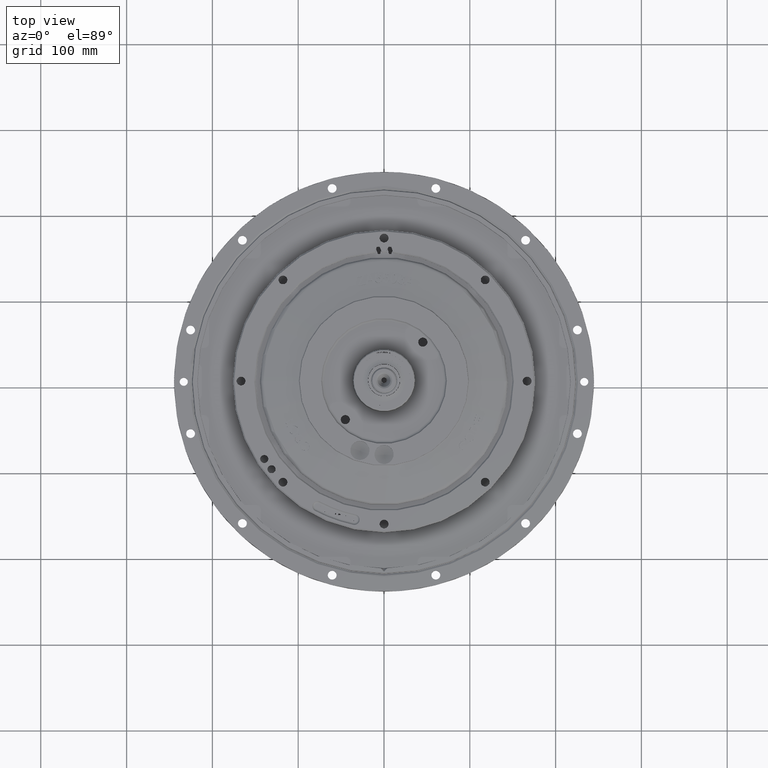
[diagram: clean part render]
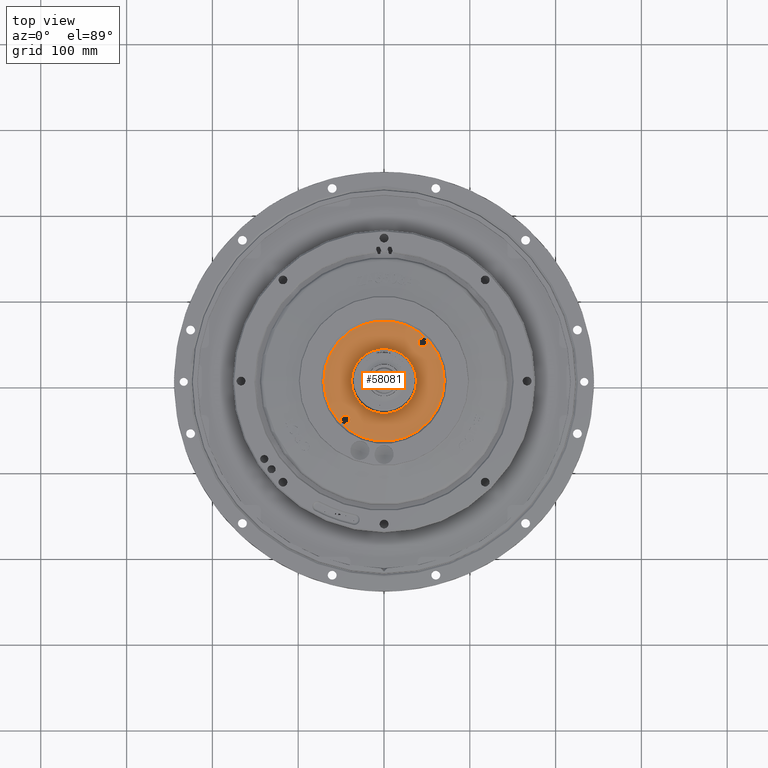
[diagram: same view with one face highlighted and labeled with its STEP entity id]
A machine part, top view. The second image highlights one B-rep face of the part: STEP entity #58081.
In plain terms, the highlighted planar face has unit normal (0, 0, -1).
Its self-contained STEP definition (entity closure, byte-faithful):
#1324 = FACE_BOUND ( 'NONE', #30976, .T. ) ;
#1325 = FACE_BOUND ( 'NONE', #30987, .T. ) ;
#1333 = FACE_BOUND ( 'NONE', #30978, .T. ) ;
#1335 = FACE_OUTER_BOUND ( 'NONE', #30696, .T. ) ;
#2974 = PLANE ( 'NONE',  #36081 ) ;
#3046 = DIRECTION ( 'NONE',  ( 0.0000000000000000000, 0.0000000000000000000, -1.000000000000000000 ) ) ;
#3055 = CARTESIAN_POINT ( 'NONE',  ( 0.0000000000000000000, 73.09213898329285500, 48.47844000000023400 ) ) ;
#3056 = DIRECTION ( 'NONE',  ( -1.000000000000000000, 0.0000000000000000000, -0.0000000000000000000 ) ) ;
#17656 = DIRECTION ( 'NONE',  ( -0.0000000000000000000, -0.0000000000000000000, 1.000000000000000000 ) ) ;
#17657 = DIRECTION ( 'NONE',  ( -1.000000000000000000, 0.0000000000000000000, 0.0000000000000000000 ) ) ;
#17678 = CARTESIAN_POINT ( 'NONE',  ( 0.0000000000000000000, 0.0000000000000000000, 48.47844000000023400 ) ) ;
#18347 = EDGE_CURVE ( 'NONE', #22128, #21856, #34033, .T. ) ;
#18350 = EDGE_CURVE ( 'NONE', #22155, #22091, #34041, .T. ) ;
#18374 = EDGE_CURVE ( 'NONE', #22099, #21967, #34118, .T. ) ;
#18378 = EDGE_CURVE ( 'NONE', #21856, #22128, #34129, .T. ) ;
#18379 = EDGE_CURVE ( 'NONE', #22091, #22155, #34132, .T. ) ;
#18381 = EDGE_CURVE ( 'NONE', #21926, #21867, #34137, .T. ) ;
#18699 = EDGE_CURVE ( 'NONE', #21967, #22099, #34664, .T. ) ;
#18825 = EDGE_CURVE ( 'NONE', #21867, #21926, #34803, .T. ) ;
#19237 = CARTESIAN_POINT ( 'NONE',  ( 45.17068828897782900, 45.17068828897787100, 48.47844000000023400 ) ) ;
#19238 = DIRECTION ( 'NONE',  ( 0.0000000000000000000, 0.0000000000000000000, -1.000000000000000000 ) ) ;
#19239 = DIRECTION ( 'NONE',  ( -1.000000000000000000, 0.0000000000000000000, 0.0000000000000000000 ) ) ;
#21856 = VERTEX_POINT ( 'NONE', #26537 ) ;
#21867 = VERTEX_POINT ( 'NONE', #26587 ) ;
#21926 = VERTEX_POINT ( 'NONE', #26688 ) ;
#21967 = VERTEX_POINT ( 'NONE', #26340 ) ;
#22091 = VERTEX_POINT ( 'NONE', #26396 ) ;
#22099 = VERTEX_POINT ( 'NONE', #26404 ) ;
#22128 = VERTEX_POINT ( 'NONE', #26254 ) ;
#22155 = VERTEX_POINT ( 'NONE', #26219 ) ;
#22401 = AXIS2_PLACEMENT_3D ( 'NONE', #48733, #48734, #48735 ) ;
#22414 = AXIS2_PLACEMENT_3D ( 'NONE', #48812, #48811, #48809 ) ;
#22415 = AXIS2_PLACEMENT_3D ( 'NONE', #49083, #48816, #48815 ) ;
#22417 = AXIS2_PLACEMENT_3D ( 'NONE', #49087, #49177, #49178 ) ;
#22434 = AXIS2_PLACEMENT_3D ( 'NONE', #48724, #48727, #48726 ) ;
#22437 = AXIS2_PLACEMENT_3D ( 'NONE', #49060, #49056, #49058 ) ;
#22673 = AXIS2_PLACEMENT_3D ( 'NONE', #19237, #19238, #19239 ) ;
#22863 = AXIS2_PLACEMENT_3D ( 'NONE', #17678, #17656, #17657 ) ;
#26219 = CARTESIAN_POINT ( 'NONE',  ( 37.82709115927645600, 4.632482610926305100E-015, 48.47844000000023400 ) ) ;
#26254 = CARTESIAN_POINT ( 'NONE',  ( -39.81255828897779700, -45.17068828897783600, 48.47844000000023400 ) ) ;
#26340 = CARTESIAN_POINT ( 'NONE',  ( -70.12290884072355400, 0.0000000000000000000, 48.47844000000023400 ) ) ;
#26396 = CARTESIAN_POINT ( 'NONE',  ( -37.82709115927645600, 0.0000000000000000000, 48.47844000000023400 ) ) ;
#26404 = CARTESIAN_POINT ( 'NONE',  ( 70.12290884072355400, 8.768289282542371400E-015, 48.47844000000023400 ) ) ;
#26537 = CARTESIAN_POINT ( 'NONE',  ( -50.52881828897776000, -45.17068828897783600, 48.47844000000023400 ) ) ;
#26587 = CARTESIAN_POINT ( 'NONE',  ( 50.52881828897781700, 45.17068828897787100, 48.47844000000023400 ) ) ;
#26688 = CARTESIAN_POINT ( 'NONE',  ( 39.81255828897784000, 45.17068828897787100, 48.47844000000023400 ) ) ;
#30212 = ORIENTED_EDGE ( 'NONE', *, *, #18374, .T. ) ;
#30217 = ORIENTED_EDGE ( 'NONE', *, *, #18347, .T. ) ;
#30218 = ORIENTED_EDGE ( 'NONE', *, *, #18825, .T. ) ;
#30220 = ORIENTED_EDGE ( 'NONE', *, *, #18381, .T. ) ;
#30696 = EDGE_LOOP ( 'NONE', ( #31141, #30212 ) ) ;
#30976 = EDGE_LOOP ( 'NONE', ( #31197, #30217 ) ) ;
#30978 = EDGE_LOOP ( 'NONE', ( #39962, #39660 ) ) ;
#30987 = EDGE_LOOP ( 'NONE', ( #30220, #30218 ) ) ;
#31141 = ORIENTED_EDGE ( 'NONE', *, *, #18699, .T. ) ;
#31197 = ORIENTED_EDGE ( 'NONE', *, *, #18378, .T. ) ;
#34033 = CIRCLE ( 'NONE', #22434, 5.358129999999981400 ) ;
#34041 = CIRCLE ( 'NONE', #22401, 37.82709115927645600 ) ;
#34118 = CIRCLE ( 'NONE', #22437, 70.12290884072355400 ) ;
#34129 = CIRCLE ( 'NONE', #22417, 5.358129999999981400 ) ;
#34132 = CIRCLE ( 'NONE', #22415, 37.82709115927645600 ) ;
#34137 = CIRCLE ( 'NONE', #22414, 5.358129999999988500 ) ;
#34664 = CIRCLE ( 'NONE', #22863, 70.12290884072355400 ) ;
#34803 = CIRCLE ( 'NONE', #22673, 5.358129999999988500 ) ;
#36081 = AXIS2_PLACEMENT_3D ( 'NONE', #3055, #3046, #3056 ) ;
#39660 = ORIENTED_EDGE ( 'NONE', *, *, #18350, .T. ) ;
#39962 = ORIENTED_EDGE ( 'NONE', *, *, #18379, .T. ) ;
#48724 = CARTESIAN_POINT ( 'NONE',  ( -45.17068828897777900, -45.17068828897783600, 48.47844000000023400 ) ) ;
#48726 = DIRECTION ( 'NONE',  ( -1.000000000000000000, 0.0000000000000000000, 0.0000000000000000000 ) ) ;
#48727 = DIRECTION ( 'NONE',  ( 0.0000000000000000000, 0.0000000000000000000, -1.000000000000000000 ) ) ;
#48733 = CARTESIAN_POINT ( 'NONE',  ( 0.0000000000000000000, 0.0000000000000000000, 48.47844000000023400 ) ) ;
#48734 = DIRECTION ( 'NONE',  ( 0.0000000000000000000, 0.0000000000000000000, -1.000000000000000000 ) ) ;
#48735 = DIRECTION ( 'NONE',  ( -1.000000000000000000, 0.0000000000000000000, 0.0000000000000000000 ) ) ;
#48809 = DIRECTION ( 'NONE',  ( -1.000000000000000000, 0.0000000000000000000, 0.0000000000000000000 ) ) ;
#48811 = DIRECTION ( 'NONE',  ( 0.0000000000000000000, 0.0000000000000000000, -1.000000000000000000 ) ) ;
#48812 = CARTESIAN_POINT ( 'NONE',  ( 45.17068828897782900, 45.17068828897787100, 48.47844000000023400 ) ) ;
#48815 = DIRECTION ( 'NONE',  ( -1.000000000000000000, 0.0000000000000000000, 0.0000000000000000000 ) ) ;
#48816 = DIRECTION ( 'NONE',  ( 0.0000000000000000000, 0.0000000000000000000, -1.000000000000000000 ) ) ;
#49056 = DIRECTION ( 'NONE',  ( -0.0000000000000000000, -0.0000000000000000000, 1.000000000000000000 ) ) ;
#49058 = DIRECTION ( 'NONE',  ( -1.000000000000000000, 0.0000000000000000000, 0.0000000000000000000 ) ) ;
#49060 = CARTESIAN_POINT ( 'NONE',  ( 0.0000000000000000000, 0.0000000000000000000, 48.47844000000023400 ) ) ;
#49083 = CARTESIAN_POINT ( 'NONE',  ( 0.0000000000000000000, 0.0000000000000000000, 48.47844000000023400 ) ) ;
#49087 = CARTESIAN_POINT ( 'NONE',  ( -45.17068828897777900, -45.17068828897783600, 48.47844000000023400 ) ) ;
#49177 = DIRECTION ( 'NONE',  ( 0.0000000000000000000, 0.0000000000000000000, -1.000000000000000000 ) ) ;
#49178 = DIRECTION ( 'NONE',  ( -1.000000000000000000, 0.0000000000000000000, 0.0000000000000000000 ) ) ;
#58081 = ADVANCED_FACE ( 'NONE', ( #1325, #1324, #1333, #1335 ), #2974, .F. ) ;